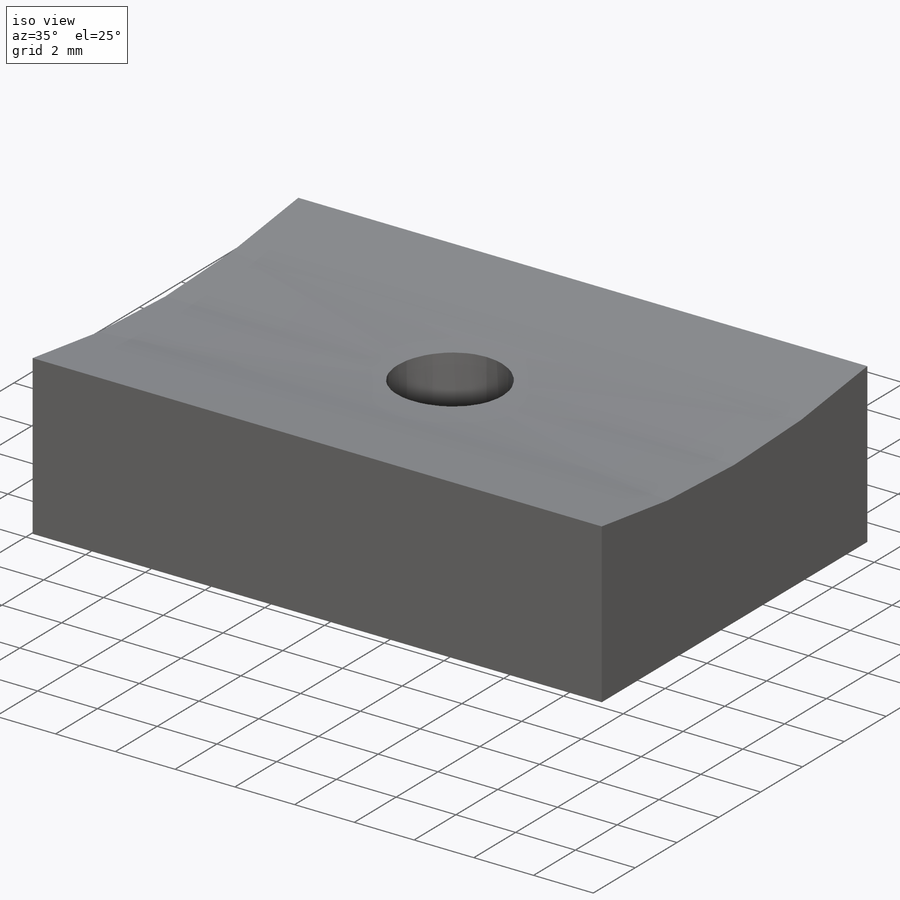
[diagram: iso view]
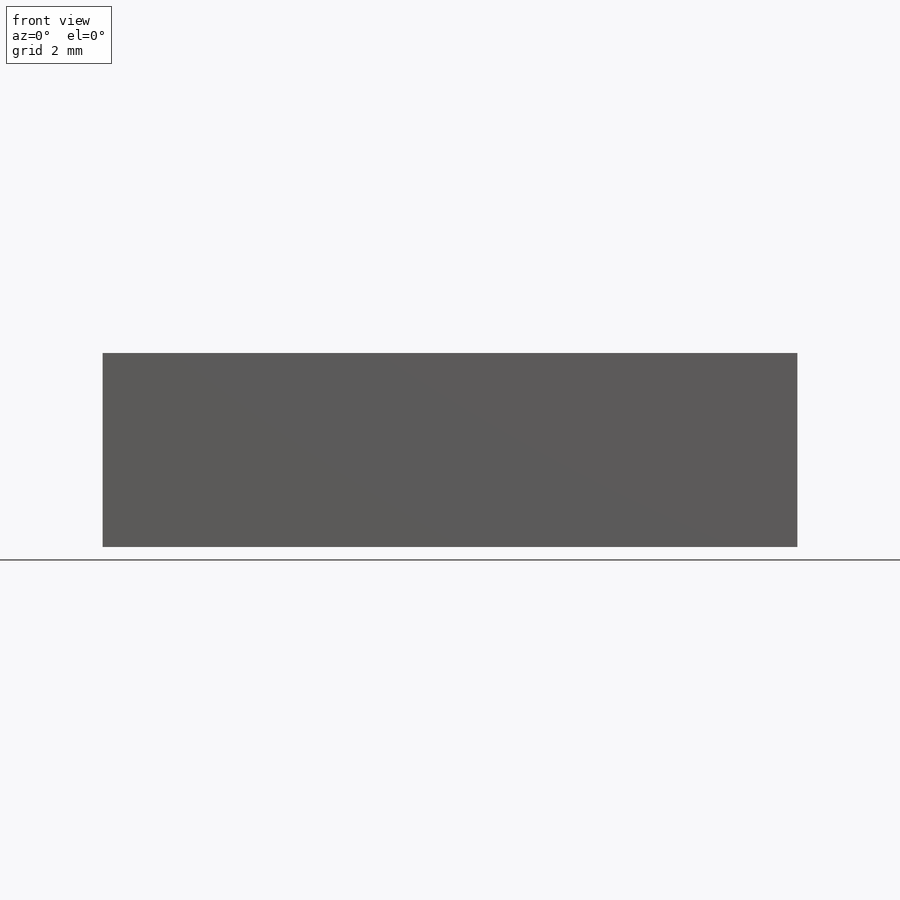
[diagram: front view]
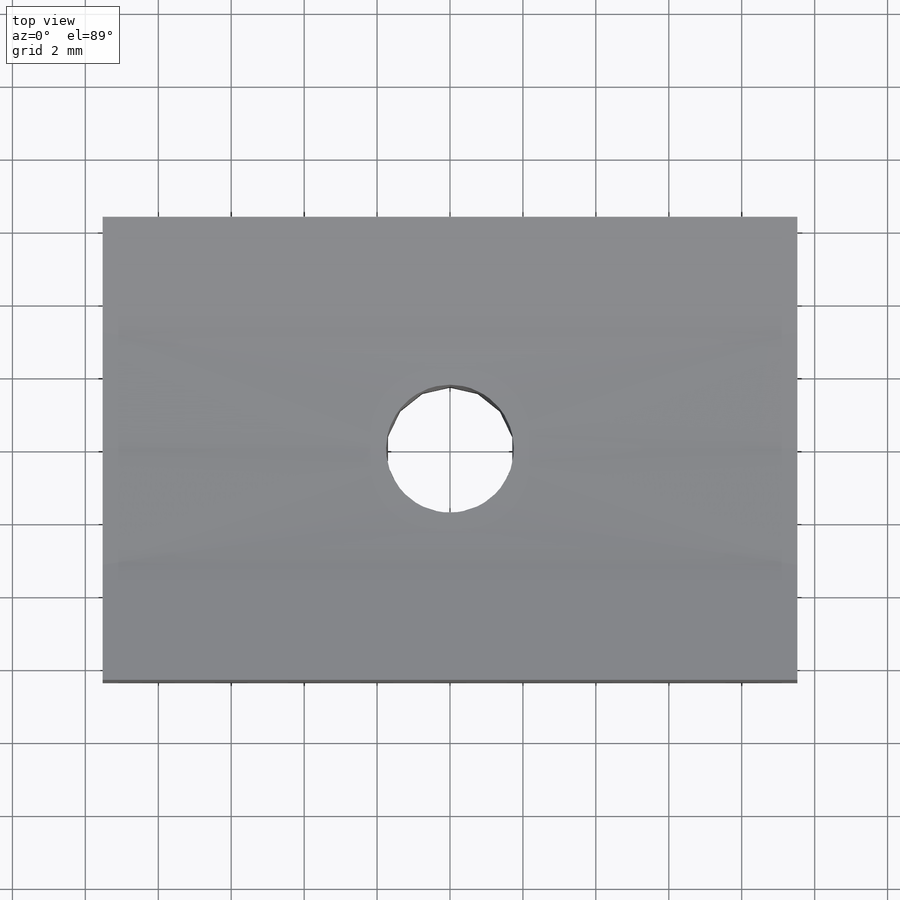
[diagram: top view]
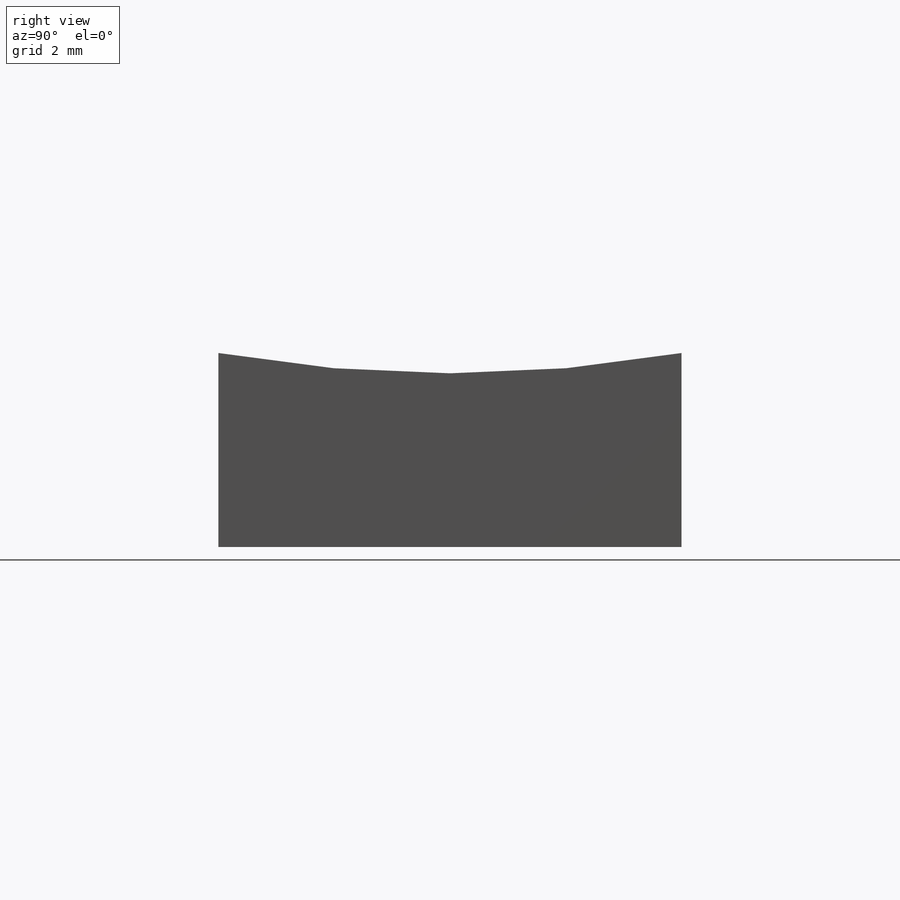
[diagram: right view]
SOLIDWORKS PART (.sldprt)
format: sldprt  version: not decoded by parser v0  size: 142,336 bytes
history: native  units: mm
features: sketch x4, material x1, extrude x1, cut_extrude x1, hole x1 (+11 scaffold rows collapsed)
feature tree (19):
  scaffold x11  (default folders/planes/origin — collapsed)
  material  "6061 Alloy"
  sketch  "Sketch1"  dims[D1=12.7mm D2=19.05mm D3=9.525mm D4=6.35mm]
  extrude  "Extrude1"  Depth=41.275mm
  sketch  "Sketch2"  dims[D1=~34.983293mm]
  cut_extrude  "Cut-Extrude1"  Depth=41.275mm
  hole  "#6-32 Tapped Hole1"  Diameter=2.7051mm Depth=9.398mm
  sketch  "3DSketch1"  dims[D1=9.525mm D2=6.35mm]
  sketch  "Sketch3"  dims[hole-wizard template sketch: 34 standard entries collapsed; hole parameters above]
decode coverage: 7 of 7 modeling features carry decoded parameters
note: ~ marks probable driven/reference dimensions
note: suppression state not decoded; provenance and decode notes live in map.json
